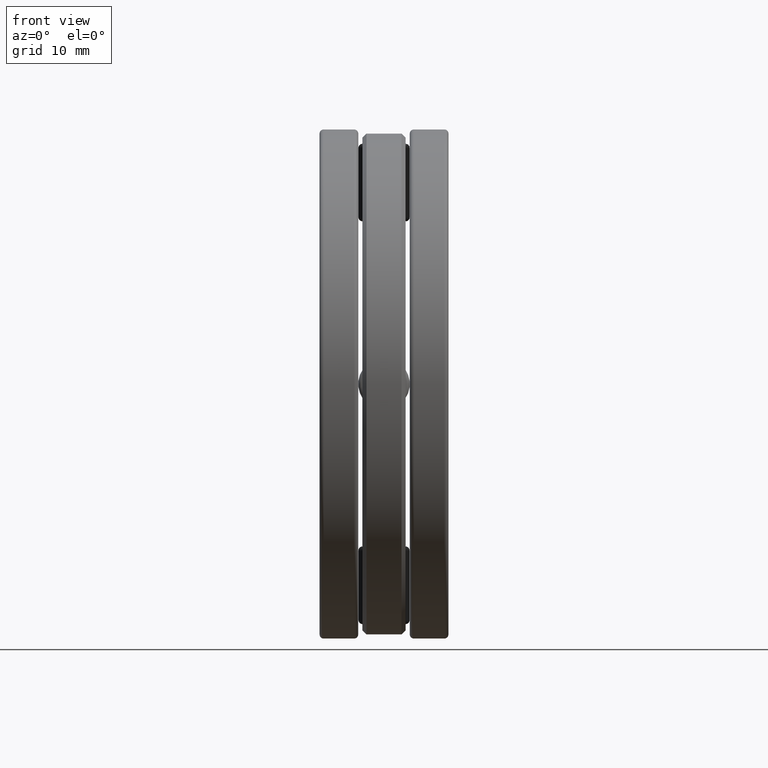
[diagram: clean part render]
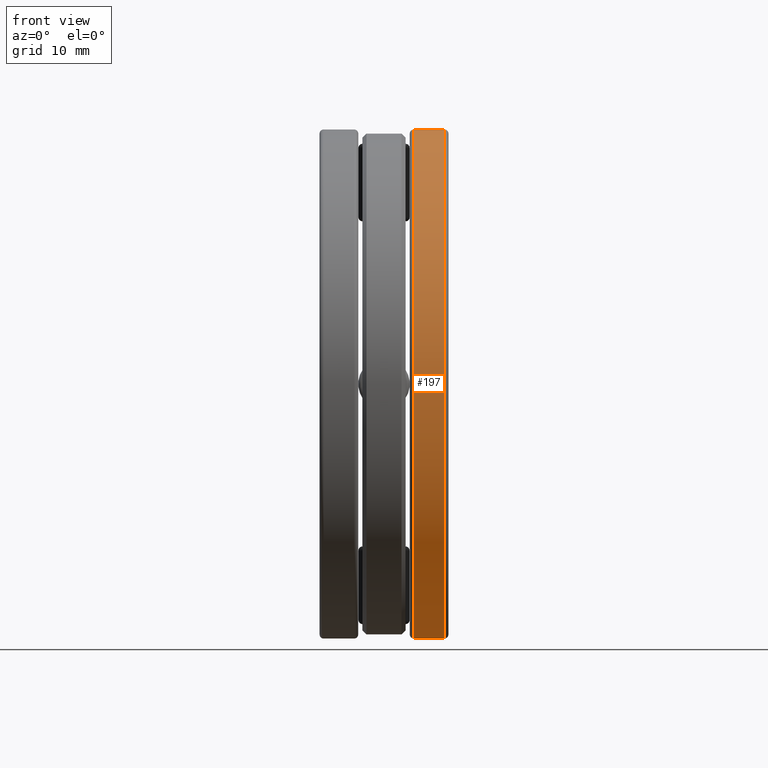
[diagram: same view with one face highlighted and labeled with its STEP entity id]
A machine part, front view. The second image highlights one B-rep face of the part: STEP entity #197.
In plain terms, the highlighted cylindrical surface (bore or boss wall) has radius 31.3531 mm, axis along (-1, -0, -0).
Its self-contained STEP definition (entity closure, byte-faithful):
#97 = CARTESIAN_POINT ( 'NONE',  ( 0.1449999999999999600, 0.0000000000000000000, 1.234375000000000200 ) ) ;
#108 = EDGE_LOOP ( 'NONE', ( #1377 ) ) ;
#197 = ADVANCED_FACE ( 'NONE', ( #268, #1136 ), #777, .T. ) ;
#222 = ORIENTED_EDGE ( 'NONE', *, *, #1148, .F. ) ;
#268 = FACE_OUTER_BOUND ( 'NONE', #494, .T. ) ;
#278 = CARTESIAN_POINT ( 'NONE',  ( 0.2925000000000000400, 0.0000000000000000000, 0.0000000000000000000 ) ) ;
#494 = EDGE_LOOP ( 'NONE', ( #222 ) ) ;
#511 = DIRECTION ( 'NONE',  ( 0.0000000000000000000, 0.0000000000000000000, 1.000000000000000000 ) ) ;
#543 = CARTESIAN_POINT ( 'NONE',  ( 0.2925000000000000400, 0.0000000000000000000, 1.234375000000000200 ) ) ;
#546 = DIRECTION ( 'NONE',  ( -1.000000000000000000, -0.0000000000000000000, -0.0000000000000000000 ) ) ;
#662 = CARTESIAN_POINT ( 'NONE',  ( 0.0000000000000000000, 0.0000000000000000000, 0.0000000000000000000 ) ) ;
#665 = DIRECTION ( 'NONE',  ( 0.0000000000000000000, 0.0000000000000000000, 1.000000000000000000 ) ) ;
#680 = EDGE_CURVE ( 'NONE', #1274, #1274, #875, .T. ) ;
#777 = CYLINDRICAL_SURFACE ( 'NONE', #837, 1.234375000000000200 ) ;
#837 = AXIS2_PLACEMENT_3D ( 'NONE', #662, #1327, #665 ) ;
#846 = DIRECTION ( 'NONE',  ( -1.000000000000000000, -0.0000000000000000000, -0.0000000000000000000 ) ) ;
#875 = CIRCLE ( 'NONE', #988, 1.234375000000000200 ) ;
#886 = AXIS2_PLACEMENT_3D ( 'NONE', #913, #546, #906 ) ;
#906 = DIRECTION ( 'NONE',  ( 0.0000000000000000000, 0.0000000000000000000, 1.000000000000000000 ) ) ;
#913 = CARTESIAN_POINT ( 'NONE',  ( 0.1449999999999999600, 0.0000000000000000000, 0.0000000000000000000 ) ) ;
#988 = AXIS2_PLACEMENT_3D ( 'NONE', #278, #846, #511 ) ;
#1086 = VERTEX_POINT ( 'NONE', #97 ) ;
#1136 = FACE_OUTER_BOUND ( 'NONE', #108, .T. ) ;
#1148 = EDGE_CURVE ( 'NONE', #1086, #1086, #1362, .T. ) ;
#1274 = VERTEX_POINT ( 'NONE', #543 ) ;
#1327 = DIRECTION ( 'NONE',  ( -1.000000000000000000, -0.0000000000000000000, -0.0000000000000000000 ) ) ;
#1362 = CIRCLE ( 'NONE', #886, 1.234375000000000200 ) ;
#1377 = ORIENTED_EDGE ( 'NONE', *, *, #680, .T. ) ;